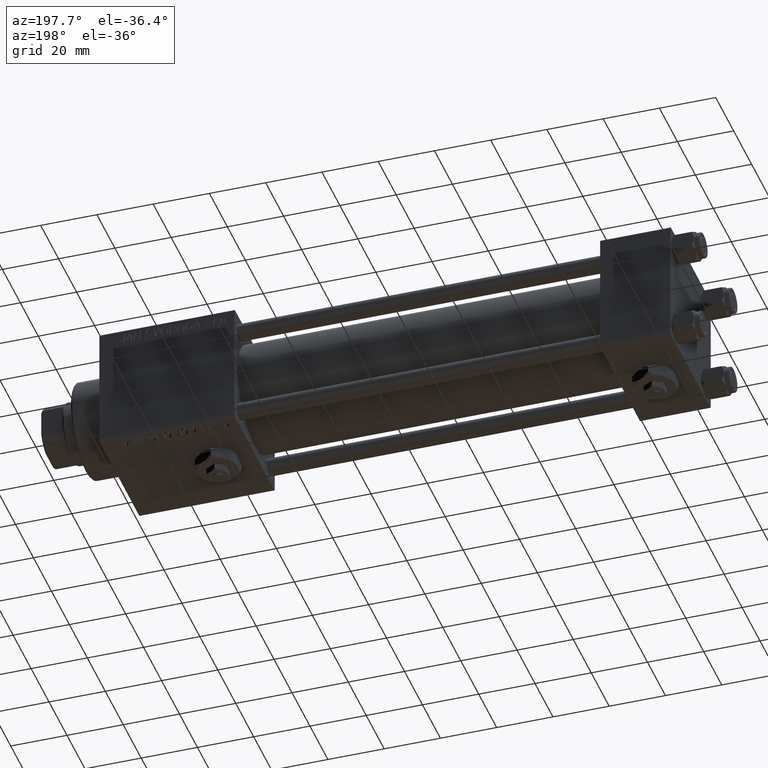
[diagram: clean part render]
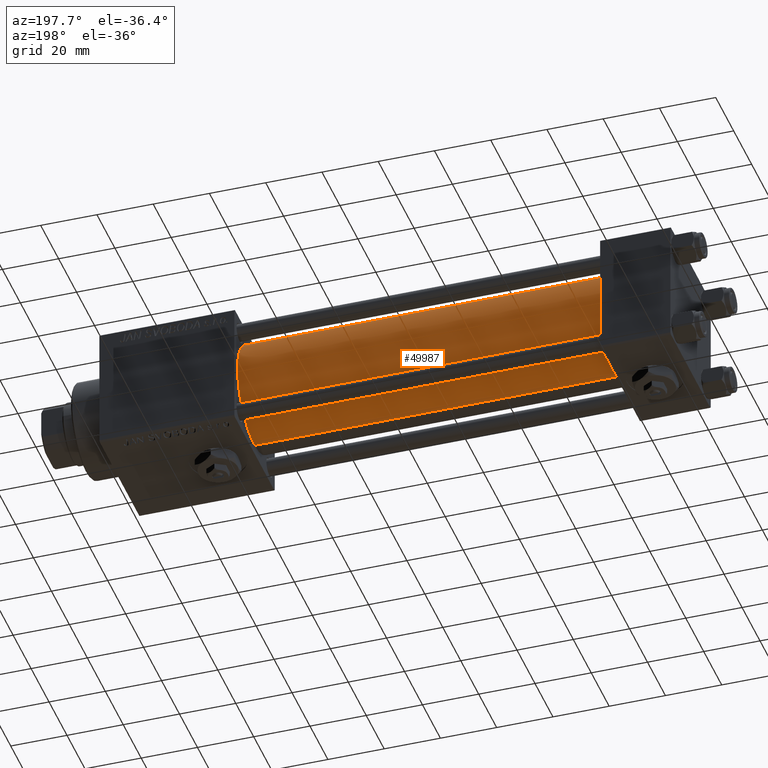
[diagram: same view with one face highlighted and labeled with its STEP entity id]
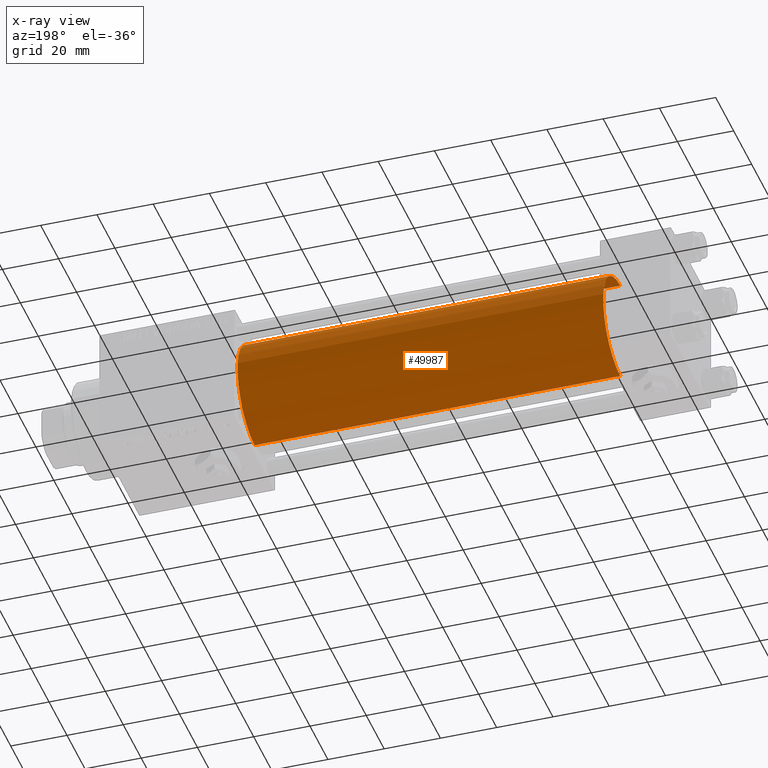
[diagram: x-ray of the same camera — body ghosted, the highlighted face saturated]
A machine part, auxiliary view. The second image highlights one B-rep face of the part: STEP entity #49987.
The next image is the same camera in x-ray: the body ghosted, the highlighted face saturated — about 0% of this face is hidden behind the body in this view.
In plain terms, the highlighted cylindrical surface (partial cylindrical patch) has radius 19 mm, axis along (-1, -0, -0).
Its self-contained STEP definition (entity closure, byte-faithful):
#149 = DIRECTION ( 'NONE',  ( -1.000000000000000000, -0.000000000000000000, -0.000000000000000000 ) ) ;
#5820 = AXIS2_PLACEMENT_3D ( 'NONE', #16801, #32799, #28481 ) ;
#6486 = DIRECTION ( 'NONE',  ( 1.000000000000000000, -0.000000000000000000, 0.000000000000000000 ) ) ;
#7101 = ORIENTED_EDGE ( 'NONE', *, *, #30774, .T. ) ;
#8461 = DIRECTION ( 'NONE',  ( -1.000000000000000000, -0.000000000000000000, -0.000000000000000000 ) ) ;
#9954 = AXIS2_PLACEMENT_3D ( 'NONE', #35956, #6486, #48973 ) ;
#10790 = VERTEX_POINT ( 'NONE', #11104 ) ;
#10974 = CIRCLE ( 'NONE', #5820, 19.00000000000000000 ) ;
#11104 = CARTESIAN_POINT ( 'NONE',  ( 155.0000000000000000, -2.752562955852396712E-16, -19.00000000000000000 ) ) ;
#11338 = LINE ( 'NONE', #27052, #12521 ) ;
#11812 = ORIENTED_EDGE ( 'NONE', *, *, #31868, .F. ) ;
#12011 = CARTESIAN_POINT ( 'NONE',  ( 24.99999999999999289, -2.602085213965210642E-15, 19.00000000000000000 ) ) ;
#12521 = VECTOR ( 'NONE', #32162, 1000.000000000000000 ) ;
#16801 = CARTESIAN_POINT ( 'NONE',  ( 155.0000000000000000, -2.602085213965210642E-15, 0.000000000000000000 ) ) ;
#20894 = DIRECTION ( 'NONE',  ( 0.000000000000000000, 0.000000000000000000, 1.000000000000000000 ) ) ;
#21382 = VERTEX_POINT ( 'NONE', #12011 ) ;
#21424 = CYLINDRICAL_SURFACE ( 'NONE', #22858, 19.00000000000000000 ) ;
#22424 = VERTEX_POINT ( 'NONE', #51249 ) ;
#22858 = AXIS2_PLACEMENT_3D ( 'NONE', #29549, #8461, #20894 ) ;
#25176 = EDGE_CURVE ( 'NONE', #10790, #22424, #10974, .T. ) ;
#25940 = LINE ( 'NONE', #45628, #34202 ) ;
#27052 = CARTESIAN_POINT ( 'NONE',  ( 155.0000000000000000, -2.752562955852396712E-16, -19.00000000000000000 ) ) ;
#28481 = DIRECTION ( 'NONE',  ( 0.000000000000000000, 0.000000000000000000, -1.000000000000000000 ) ) ;
#29549 = CARTESIAN_POINT ( 'NONE',  ( 155.0000000000000000, -2.602085213965210642E-15, 0.000000000000000000 ) ) ;
#29761 = CARTESIAN_POINT ( 'NONE',  ( 24.99999999999999289, -2.752562955852396712E-16, -19.00000000000000000 ) ) ;
#30774 = EDGE_CURVE ( 'NONE', #10790, #33103, #11338, .T. ) ;
#31632 = EDGE_CURVE ( 'NONE', #33103, #21382, #52279, .T. ) ;
#31786 = EDGE_LOOP ( 'NONE', ( #40499, #7101, #32624, #11812 ) ) ;
#31868 = EDGE_CURVE ( 'NONE', #22424, #21382, #25940, .T. ) ;
#32162 = DIRECTION ( 'NONE',  ( -1.000000000000000000, -0.000000000000000000, -0.000000000000000000 ) ) ;
#32624 = ORIENTED_EDGE ( 'NONE', *, *, #31632, .T. ) ;
#32799 = DIRECTION ( 'NONE',  ( 1.000000000000000000, 0.000000000000000000, 0.000000000000000000 ) ) ;
#33103 = VERTEX_POINT ( 'NONE', #29761 ) ;
#34202 = VECTOR ( 'NONE', #149, 1000.000000000000000 ) ;
#35956 = CARTESIAN_POINT ( 'NONE',  ( 24.99999999999999289, -2.602085213965210642E-15, 0.000000000000000000 ) ) ;
#40499 = ORIENTED_EDGE ( 'NONE', *, *, #25176, .F. ) ;
#45628 = CARTESIAN_POINT ( 'NONE',  ( 155.0000000000000000, -2.602085213965210642E-15, 19.00000000000000000 ) ) ;
#45828 = FACE_OUTER_BOUND ( 'NONE', #31786, .T. ) ;
#48973 = DIRECTION ( 'NONE',  ( 0.000000000000000000, 0.000000000000000000, 1.000000000000000000 ) ) ;
#49987 = ADVANCED_FACE ( 'NONE', ( #45828 ), #21424, .T. ) ;
#51249 = CARTESIAN_POINT ( 'NONE',  ( 155.0000000000000000, -2.602085213965210642E-15, 19.00000000000000000 ) ) ;
#52279 = CIRCLE ( 'NONE', #9954, 19.00000000000000000 ) ;